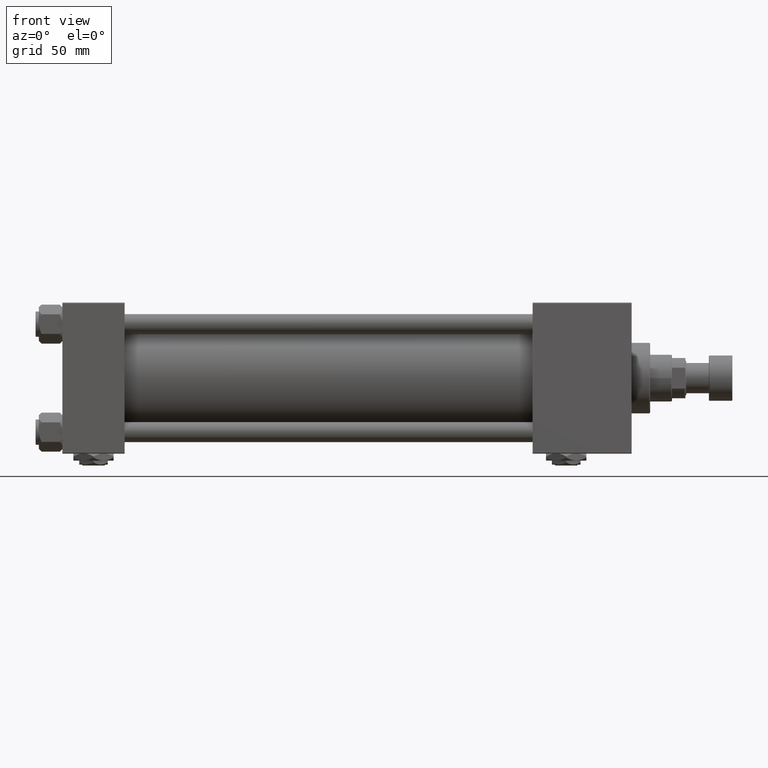
[diagram: clean part render]
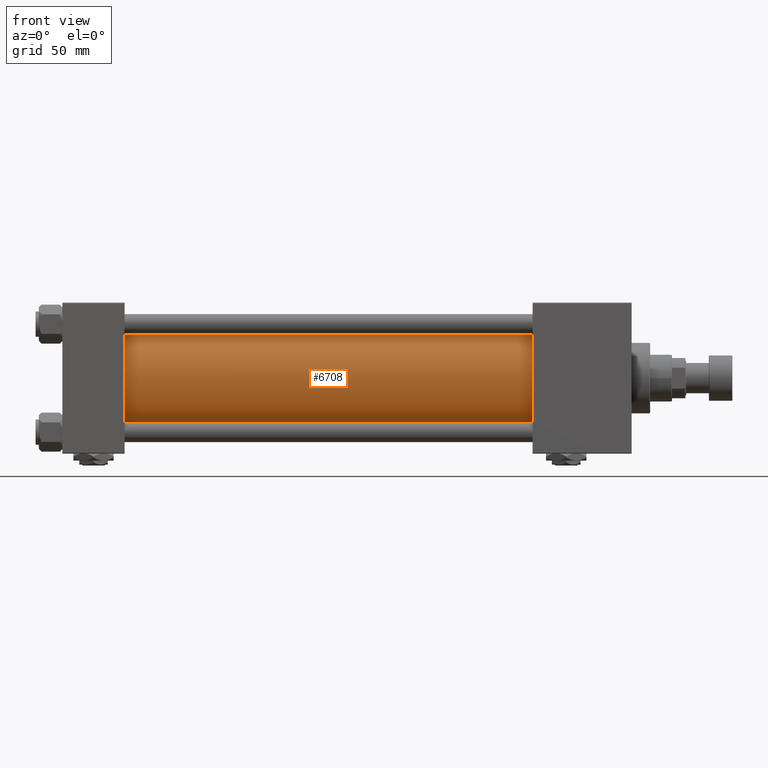
[diagram: same view with one face highlighted and labeled with its STEP entity id]
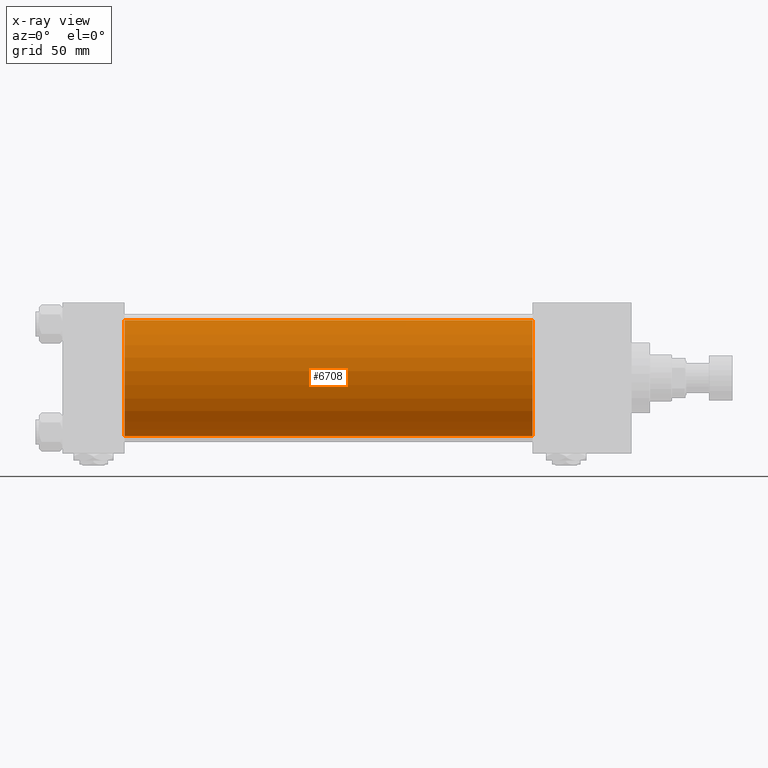
[diagram: x-ray of the same camera — body ghosted, the highlighted face saturated]
A machine part, front view. The second image highlights one B-rep face of the part: STEP entity #6708.
The next image is the same camera in x-ray: the body ghosted, the highlighted face saturated — about 0% of this face is hidden behind the body in this view.
In plain terms, the highlighted cylindrical surface (partial cylindrical patch) has radius 34.5 mm, axis along (-1, -0, -0).
Its self-contained STEP definition (entity closure, byte-faithful):
#998 = CARTESIAN_POINT ( 'NONE',  ( 279.9999999999999432, -2.602085213965210642E-15, 0.000000000000000000 ) ) ;
#1355 = LINE ( 'NONE', #17628, #39560 ) ;
#2207 = AXIS2_PLACEMENT_3D ( 'NONE', #30753, #15275, #23020 ) ;
#2313 = LINE ( 'NONE', #26587, #46757 ) ;
#2576 = DIRECTION ( 'NONE',  ( -1.000000000000000000, -0.000000000000000000, -0.000000000000000000 ) ) ;
#3291 = CARTESIAN_POINT ( 'NONE',  ( 37.00000000000000711, -2.602085213965210642E-15, 0.000000000000000000 ) ) ;
#3748 = EDGE_CURVE ( 'NONE', #5444, #33533, #1355, .T. ) ;
#5444 = VERTEX_POINT ( 'NONE', #42040 ) ;
#6708 = ADVANCED_FACE ( 'NONE', ( #10758 ), #6751, .T. ) ;
#6751 = CYLINDRICAL_SURFACE ( 'NONE', #2207, 34.50000000000000000 ) ;
#9169 = CARTESIAN_POINT ( 'NONE',  ( 279.9999999999999432, -2.602085213965210642E-15, 34.50000000000000000 ) ) ;
#10758 = FACE_OUTER_BOUND ( 'NONE', #17313, .T. ) ;
#11068 = CIRCLE ( 'NONE', #23867, 34.50000000000000000 ) ;
#12188 = CARTESIAN_POINT ( 'NONE',  ( 37.00000000000000711, 1.622946243093158675E-15, -34.50000000000000000 ) ) ;
#12235 = ORIENTED_EDGE ( 'NONE', *, *, #45385, .T. ) ;
#15275 = DIRECTION ( 'NONE',  ( -1.000000000000000000, -0.000000000000000000, -0.000000000000000000 ) ) ;
#15332 = CIRCLE ( 'NONE', #26296, 34.50000000000000000 ) ;
#15372 = ORIENTED_EDGE ( 'NONE', *, *, #43200, .T. ) ;
#17313 = EDGE_LOOP ( 'NONE', ( #22354, #17782, #15372, #12235 ) ) ;
#17628 = CARTESIAN_POINT ( 'NONE',  ( 279.9999999999999432, 1.622946243093158675E-15, -34.50000000000000000 ) ) ;
#17782 = ORIENTED_EDGE ( 'NONE', *, *, #43156, .F. ) ;
#18320 = DIRECTION ( 'NONE',  ( 0.000000000000000000, 0.000000000000000000, -1.000000000000000000 ) ) ;
#19361 = VERTEX_POINT ( 'NONE', #9169 ) ;
#22354 = ORIENTED_EDGE ( 'NONE', *, *, #3748, .F. ) ;
#23020 = DIRECTION ( 'NONE',  ( 0.000000000000000000, 0.000000000000000000, 1.000000000000000000 ) ) ;
#23185 = CARTESIAN_POINT ( 'NONE',  ( 37.00000000000000711, -2.602085213965210642E-15, 34.50000000000000000 ) ) ;
#23867 = AXIS2_PLACEMENT_3D ( 'NONE', #3291, #24097, #44381 ) ;
#24097 = DIRECTION ( 'NONE',  ( 1.000000000000000000, -0.000000000000000000, 0.000000000000000000 ) ) ;
#25536 = DIRECTION ( 'NONE',  ( 1.000000000000000000, 0.000000000000000000, 0.000000000000000000 ) ) ;
#26296 = AXIS2_PLACEMENT_3D ( 'NONE', #998, #25536, #18320 ) ;
#26587 = CARTESIAN_POINT ( 'NONE',  ( 279.9999999999999432, -2.602085213965210642E-15, 34.50000000000000000 ) ) ;
#30152 = VERTEX_POINT ( 'NONE', #23185 ) ;
#30753 = CARTESIAN_POINT ( 'NONE',  ( 279.9999999999999432, -2.602085213965210642E-15, 0.000000000000000000 ) ) ;
#33533 = VERTEX_POINT ( 'NONE', #12188 ) ;
#34158 = DIRECTION ( 'NONE',  ( -1.000000000000000000, -0.000000000000000000, -0.000000000000000000 ) ) ;
#39560 = VECTOR ( 'NONE', #34158, 1000.000000000000000 ) ;
#42040 = CARTESIAN_POINT ( 'NONE',  ( 279.9999999999999432, 1.622946243093158675E-15, -34.50000000000000000 ) ) ;
#43156 = EDGE_CURVE ( 'NONE', #19361, #5444, #15332, .T. ) ;
#43200 = EDGE_CURVE ( 'NONE', #19361, #30152, #2313, .T. ) ;
#44381 = DIRECTION ( 'NONE',  ( 0.000000000000000000, 0.000000000000000000, 1.000000000000000000 ) ) ;
#45385 = EDGE_CURVE ( 'NONE', #30152, #33533, #11068, .T. ) ;
#46757 = VECTOR ( 'NONE', #2576, 1000.000000000000000 ) ;